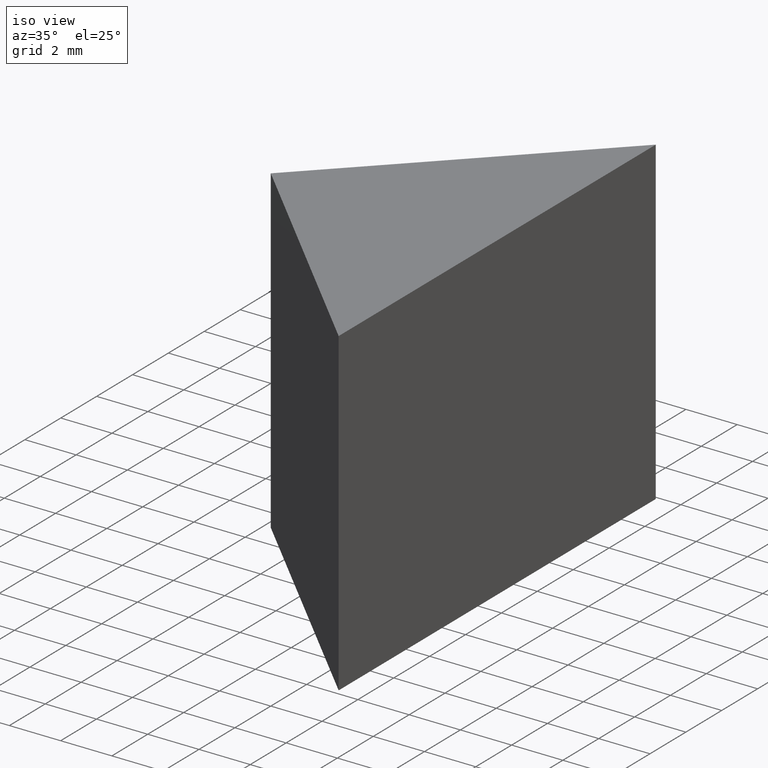
[diagram: clean part render]
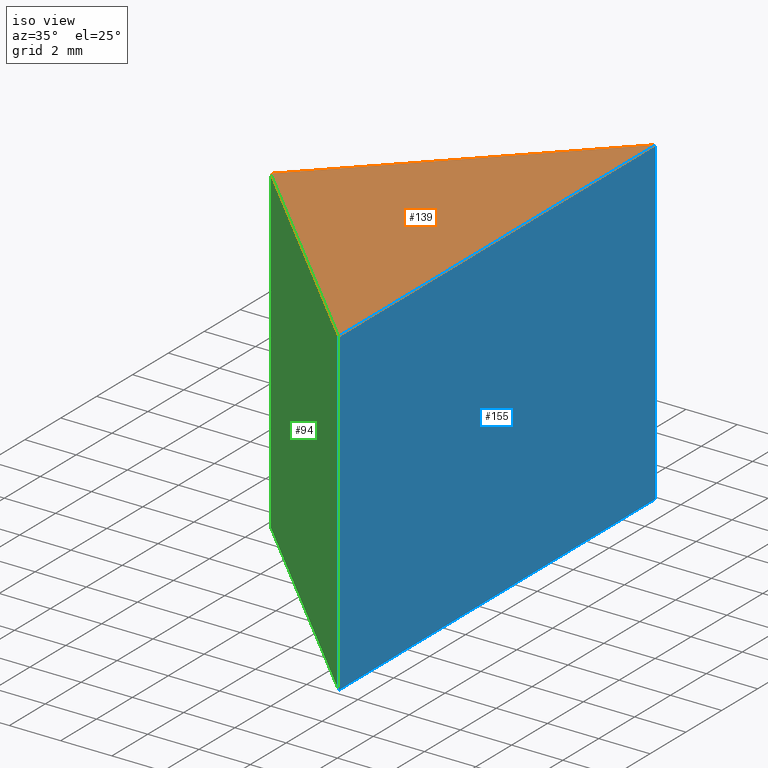
[diagram: same view with three faces highlighted in distinct colors, each labeled with its STEP entity id]
A machine part, iso view with three faces highlighted in distinct colors.
Their STEP definitions:

[orange] entity #139 — the highlighted planar face has unit normal (-0, 0, 1).
#5 = VECTOR ( 'NONE', #156, 1000.000000000000000 ) ;
#13 = VERTEX_POINT ( 'NONE', #99 ) ;
#16 = VERTEX_POINT ( 'NONE', #117 ) ;
#20 = ORIENTED_EDGE ( 'NONE', *, *, #36, .T. ) ;
#21 = EDGE_LOOP ( 'NONE', ( #159, #20, #127 ) ) ;
#23 = EDGE_CURVE ( 'NONE', #13, #16, #38, .T. ) ;
#34 = FACE_OUTER_BOUND ( 'NONE', #21, .T. ) ;
#36 = EDGE_CURVE ( 'NONE', #157, #13, #79, .T. ) ;
#38 = LINE ( 'NONE', #158, #5 ) ;
#53 = AXIS2_PLACEMENT_3D ( 'NONE', #101, #90, #126 ) ;
#57 = DIRECTION ( 'NONE',  ( 1.570092458683774700E-015, 1.000000000000000000, 0.0000000000000000000 ) ) ;
#73 = DIRECTION ( 'NONE',  ( 0.7071067811865465700, -0.7071067811865484600, 0.0000000000000000000 ) ) ;
#79 = LINE ( 'NONE', #85, #81 ) ;
#81 = VECTOR ( 'NONE', #57, 1000.000000000000000 ) ;
#82 = EDGE_CURVE ( 'NONE', #16, #157, #108, .T. ) ;
#83 = CARTESIAN_POINT ( 'NONE',  ( 138.6916748814873000, 34.43923138208515400, 12.50000000000000000 ) ) ;
#85 = CARTESIAN_POINT ( 'NONE',  ( 147.5305096463191300, 25.60039661725330600, 12.50000000000000000 ) ) ;
#89 = PLANE ( 'NONE',  #53 ) ;
#90 = DIRECTION ( 'NONE',  ( -0.0000000000000000000, 0.0000000000000000000, 1.000000000000000000 ) ) ;
#99 = CARTESIAN_POINT ( 'NONE',  ( 147.5305096463191600, 43.27806614691699800, 12.50000000000000000 ) ) ;
#101 = CARTESIAN_POINT ( 'NONE',  ( 0.0000000000000000000, 0.0000000000000000000, 12.50000000000000000 ) ) ;
#106 = VECTOR ( 'NONE', #73, 1000.000000000000100 ) ;
#108 = LINE ( 'NONE', #83, #106 ) ;
#117 = CARTESIAN_POINT ( 'NONE',  ( 138.6916748814873000, 34.43923138208515400, 12.50000000000000000 ) ) ;
#126 = DIRECTION ( 'NONE',  ( 1.000000000000000000, 0.0000000000000000000, 0.0000000000000000000 ) ) ;
#127 = ORIENTED_EDGE ( 'NONE', *, *, #23, .T. ) ;
#139 = ADVANCED_FACE ( 'NONE', ( #34 ), #89, .T. ) ;
#156 = DIRECTION ( 'NONE',  ( -0.7071067811865481300, -0.7071067811865470200, -0.0000000000000000000 ) ) ;
#157 = VERTEX_POINT ( 'NONE', #163 ) ;
#158 = CARTESIAN_POINT ( 'NONE',  ( 138.6916748814873000, 34.43923138208515400, 12.50000000000000000 ) ) ;
#159 = ORIENTED_EDGE ( 'NONE', *, *, #82, .T. ) ;
#163 = CARTESIAN_POINT ( 'NONE',  ( 147.5305096463191300, 25.60039661725330600, 12.50000000000000000 ) ) ;

[blue] entity #155 — the highlighted planar face has unit normal (-1, 0, 0).
#2 = ORIENTED_EDGE ( 'NONE', *, *, #36, .F. ) ;
#8 = VECTOR ( 'NONE', #97, 1000.000000000000000 ) ;
#10 = ORIENTED_EDGE ( 'NONE', *, *, #47, .F. ) ;
#11 = LINE ( 'NONE', #109, #169 ) ;
#13 = VERTEX_POINT ( 'NONE', #99 ) ;
#25 = DIRECTION ( 'NONE',  ( -0.0000000000000000000, -0.0000000000000000000, -1.000000000000000000 ) ) ;
#29 = DIRECTION ( 'NONE',  ( -1.000000000000000000, 1.570092458683774900E-015, 0.0000000000000000000 ) ) ;
#32 = EDGE_CURVE ( 'NONE', #87, #43, #11, .T. ) ;
#36 = EDGE_CURVE ( 'NONE', #157, #13, #79, .T. ) ;
#42 = EDGE_CURVE ( 'NONE', #157, #87, #116, .T. ) ;
#43 = VERTEX_POINT ( 'NONE', #56 ) ;
#46 = PLANE ( 'NONE',  #64 ) ;
#47 = EDGE_CURVE ( 'NONE', #13, #43, #136, .T. ) ;
#49 = VECTOR ( 'NONE', #25, 1000.000000000000000 ) ;
#51 = EDGE_LOOP ( 'NONE', ( #95, #10, #2, #62 ) ) ;
#56 = CARTESIAN_POINT ( 'NONE',  ( 147.5305096463191600, 43.27806614691699800, 0.0000000000000000000 ) ) ;
#57 = DIRECTION ( 'NONE',  ( 1.570092458683774700E-015, 1.000000000000000000, 0.0000000000000000000 ) ) ;
#62 = ORIENTED_EDGE ( 'NONE', *, *, #42, .T. ) ;
#64 = AXIS2_PLACEMENT_3D ( 'NONE', #121, #29, #148 ) ;
#65 = FACE_OUTER_BOUND ( 'NONE', #51, .T. ) ;
#79 = LINE ( 'NONE', #85, #81 ) ;
#81 = VECTOR ( 'NONE', #57, 1000.000000000000000 ) ;
#85 = CARTESIAN_POINT ( 'NONE',  ( 147.5305096463191300, 25.60039661725330600, 12.50000000000000000 ) ) ;
#87 = VERTEX_POINT ( 'NONE', #130 ) ;
#95 = ORIENTED_EDGE ( 'NONE', *, *, #32, .T. ) ;
#97 = DIRECTION ( 'NONE',  ( -0.0000000000000000000, -0.0000000000000000000, -1.000000000000000000 ) ) ;
#99 = CARTESIAN_POINT ( 'NONE',  ( 147.5305096463191600, 43.27806614691699800, 12.50000000000000000 ) ) ;
#109 = CARTESIAN_POINT ( 'NONE',  ( 147.5305096463191300, 25.60039661725330600, 0.0000000000000000000 ) ) ;
#116 = LINE ( 'NONE', #120, #49 ) ;
#120 = CARTESIAN_POINT ( 'NONE',  ( 147.5305096463191300, 25.60039661725330600, 12.50000000000000000 ) ) ;
#121 = CARTESIAN_POINT ( 'NONE',  ( 147.5305096463191300, 25.60039661725330600, 12.50000000000000000 ) ) ;
#130 = CARTESIAN_POINT ( 'NONE',  ( 147.5305096463191300, 25.60039661725330600, 0.0000000000000000000 ) ) ;
#136 = LINE ( 'NONE', #146, #8 ) ;
#146 = CARTESIAN_POINT ( 'NONE',  ( 147.5305096463191600, 43.27806614691699800, 12.50000000000000000 ) ) ;
#148 = DIRECTION ( 'NONE',  ( -1.570092458683774900E-015, -1.000000000000000000, 0.0000000000000000000 ) ) ;
#155 = ADVANCED_FACE ( 'NONE', ( #65 ), #46, .F. ) ;
#157 = VERTEX_POINT ( 'NONE', #163 ) ;
#163 = CARTESIAN_POINT ( 'NONE',  ( 147.5305096463191300, 25.60039661725330600, 12.50000000000000000 ) ) ;
#168 = DIRECTION ( 'NONE',  ( 1.570092458683774700E-015, 1.000000000000000000, 0.0000000000000000000 ) ) ;
#169 = VECTOR ( 'NONE', #168, 1000.000000000000000 ) ;

[green] entity #94 — the highlighted planar face has unit normal (0.7071, 0.7071, -0).
#1 = CARTESIAN_POINT ( 'NONE',  ( 138.6916748814873000, 34.43923138208515400, 0.0000000000000000000 ) ) ;
#12 = EDGE_CURVE ( 'NONE', #16, #167, #71, .T. ) ;
#14 = DIRECTION ( 'NONE',  ( 0.7071067811865484600, 0.7071067811865465700, -0.0000000000000000000 ) ) ;
#16 = VERTEX_POINT ( 'NONE', #117 ) ;
#25 = DIRECTION ( 'NONE',  ( -0.0000000000000000000, -0.0000000000000000000, -1.000000000000000000 ) ) ;
#26 = DIRECTION ( 'NONE',  ( -0.0000000000000000000, -0.0000000000000000000, -1.000000000000000000 ) ) ;
#41 = LINE ( 'NONE', #67, #142 ) ;
#42 = EDGE_CURVE ( 'NONE', #157, #87, #116, .T. ) ;
#49 = VECTOR ( 'NONE', #25, 1000.000000000000000 ) ;
#58 = ORIENTED_EDGE ( 'NONE', *, *, #12, .T. ) ;
#66 = ORIENTED_EDGE ( 'NONE', *, *, #42, .F. ) ;
#67 = CARTESIAN_POINT ( 'NONE',  ( 138.6916748814873000, 34.43923138208515400, 0.0000000000000000000 ) ) ;
#68 = CARTESIAN_POINT ( 'NONE',  ( 138.6916748814873000, 34.43923138208515400, 12.50000000000000000 ) ) ;
#71 = LINE ( 'NONE', #68, #114 ) ;
#72 = EDGE_CURVE ( 'NONE', #167, #87, #41, .T. ) ;
#73 = DIRECTION ( 'NONE',  ( 0.7071067811865465700, -0.7071067811865484600, 0.0000000000000000000 ) ) ;
#78 = DIRECTION ( 'NONE',  ( -0.7071067811865465700, 0.7071067811865484600, 0.0000000000000000000 ) ) ;
#82 = EDGE_CURVE ( 'NONE', #16, #157, #108, .T. ) ;
#83 = CARTESIAN_POINT ( 'NONE',  ( 138.6916748814873000, 34.43923138208515400, 12.50000000000000000 ) ) ;
#87 = VERTEX_POINT ( 'NONE', #130 ) ;
#92 = AXIS2_PLACEMENT_3D ( 'NONE', #98, #14, #78 ) ;
#93 = EDGE_LOOP ( 'NONE', ( #118, #66, #154, #58 ) ) ;
#94 = ADVANCED_FACE ( 'NONE', ( #165 ), #145, .F. ) ;
#98 = CARTESIAN_POINT ( 'NONE',  ( 138.6916748814873000, 34.43923138208515400, 12.50000000000000000 ) ) ;
#106 = VECTOR ( 'NONE', #73, 1000.000000000000100 ) ;
#108 = LINE ( 'NONE', #83, #106 ) ;
#114 = VECTOR ( 'NONE', #26, 1000.000000000000000 ) ;
#116 = LINE ( 'NONE', #120, #49 ) ;
#117 = CARTESIAN_POINT ( 'NONE',  ( 138.6916748814873000, 34.43923138208515400, 12.50000000000000000 ) ) ;
#118 = ORIENTED_EDGE ( 'NONE', *, *, #72, .T. ) ;
#120 = CARTESIAN_POINT ( 'NONE',  ( 147.5305096463191300, 25.60039661725330600, 12.50000000000000000 ) ) ;
#130 = CARTESIAN_POINT ( 'NONE',  ( 147.5305096463191300, 25.60039661725330600, 0.0000000000000000000 ) ) ;
#142 = VECTOR ( 'NONE', #143, 1000.000000000000100 ) ;
#143 = DIRECTION ( 'NONE',  ( 0.7071067811865465700, -0.7071067811865484600, 0.0000000000000000000 ) ) ;
#145 = PLANE ( 'NONE',  #92 ) ;
#154 = ORIENTED_EDGE ( 'NONE', *, *, #82, .F. ) ;
#157 = VERTEX_POINT ( 'NONE', #163 ) ;
#163 = CARTESIAN_POINT ( 'NONE',  ( 147.5305096463191300, 25.60039661725330600, 12.50000000000000000 ) ) ;
#165 = FACE_OUTER_BOUND ( 'NONE', #93, .T. ) ;
#167 = VERTEX_POINT ( 'NONE', #1 ) ;